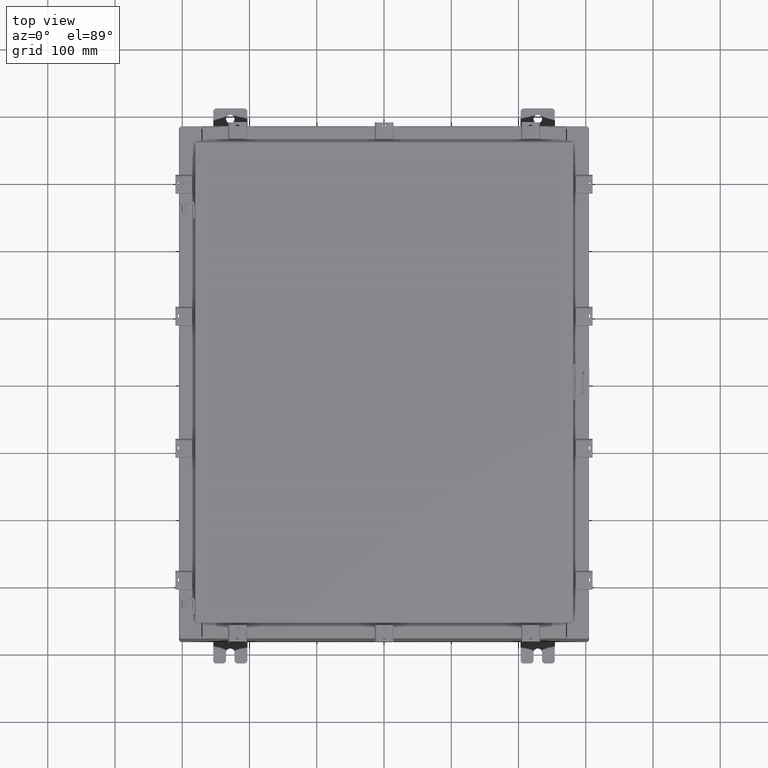
[diagram: clean part render]
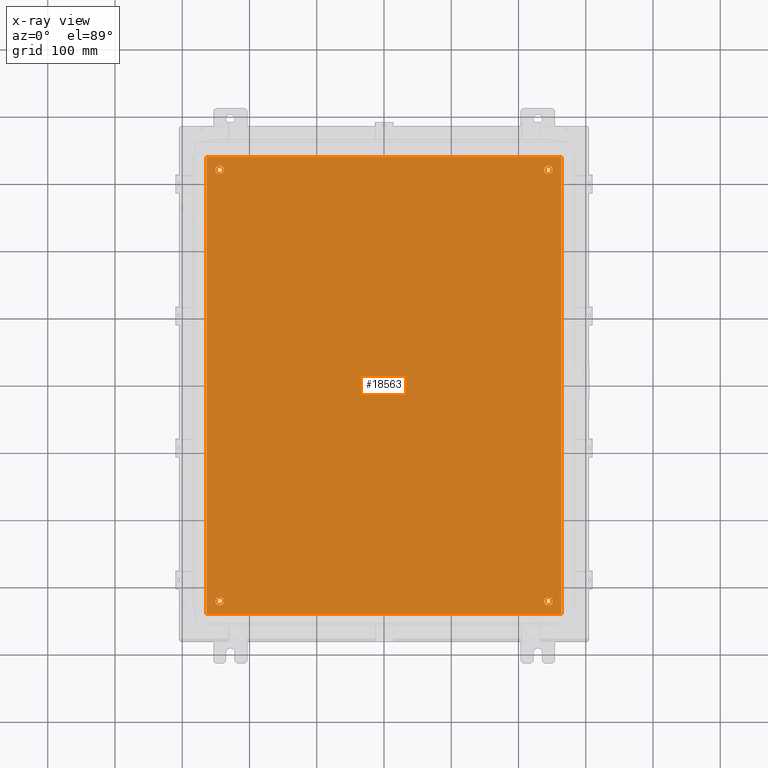
[diagram: x-ray — body ghosted, one internal face saturated and labeled with its STEP entity id]
A machine part, top view, then the same camera in x-ray: the body is ghosted and one INTERNAL B-rep face — a face not visible from any outside direction — is saturated and labeled: STEP entity #18563.
In plain terms, the highlighted planar face has unit normal (0, 0, -1).
Its self-contained STEP definition (entity closure, byte-faithful):
#208 = EDGE_LOOP ( 'NONE', ( #13639, #18663 ) ) ;
#541 = ORIENTED_EDGE ( 'NONE', *, *, #21354, .F. ) ;
#757 = AXIS2_PLACEMENT_3D ( 'NONE', #17508, #6785, #19330 ) ;
#812 = VECTOR ( 'NONE', #3775, 39.37007874015748100 ) ;
#1270 = CARTESIAN_POINT ( 'NONE',  ( -9.875000000000007100, 12.62500000000000000, -0.1039999999999999800 ) ) ;
#1626 = CARTESIAN_POINT ( 'NONE',  ( 9.625000000000007100, 12.62500000000000000, -0.1039999999999999800 ) ) ;
#2111 = DIRECTION ( 'NONE',  ( -0.0000000000000000000, -0.0000000000000000000, 1.000000000000000000 ) ) ;
#2115 = CARTESIAN_POINT ( 'NONE',  ( 9.625000000000007100, -12.62500000000000000, -0.1039999999999999800 ) ) ;
#2194 = EDGE_CURVE ( 'NONE', #21762, #18396, #5521, .T. ) ;
#2472 = VECTOR ( 'NONE', #6717, 39.37007874015748100 ) ;
#2644 = EDGE_CURVE ( 'NONE', #19890, #17779, #14235, .T. ) ;
#2728 = CARTESIAN_POINT ( 'NONE',  ( 0.0000000000000000000, 0.0000000000000000000, -0.1039999999999999800 ) ) ;
#2789 = ORIENTED_EDGE ( 'NONE', *, *, #2644, .T. ) ;
#3090 = VERTEX_POINT ( 'NONE', #12431 ) ;
#3273 = EDGE_LOOP ( 'NONE', ( #6157, #2789 ) ) ;
#3367 = EDGE_LOOP ( 'NONE', ( #541, #11520, #11009, #10593 ) ) ;
#3403 = DIRECTION ( 'NONE',  ( -1.000000000000000000, 0.0000000000000000000, 0.0000000000000000000 ) ) ;
#3775 = DIRECTION ( 'NONE',  ( -1.000000000000000000, -0.0000000000000000000, -0.0000000000000000000 ) ) ;
#3855 = DIRECTION ( 'NONE',  ( 1.000000000000000000, -0.0000000000000000000, -0.0000000000000000000 ) ) ;
#3892 = EDGE_LOOP ( 'NONE', ( #7236, #18105 ) ) ;
#3910 = DIRECTION ( 'NONE',  ( -1.000000000000000000, 0.0000000000000000000, 0.0000000000000000000 ) ) ;
#5365 = FACE_BOUND ( 'NONE', #208, .T. ) ;
#5521 = LINE ( 'NONE', #12717, #812 ) ;
#6128 = CIRCLE ( 'NONE', #17313, 0.2500000000000008900 ) ;
#6157 = ORIENTED_EDGE ( 'NONE', *, *, #11639, .T. ) ;
#6477 = FACE_BOUND ( 'NONE', #9027, .T. ) ;
#6717 = DIRECTION ( 'NONE',  ( 0.0000000000000000000, 1.000000000000000000, 0.0000000000000000000 ) ) ;
#6735 = CARTESIAN_POINT ( 'NONE',  ( 9.375000000000007100, 12.62500000000000000, -0.1039999999999999800 ) ) ;
#6785 = DIRECTION ( 'NONE',  ( -0.0000000000000000000, -0.0000000000000000000, 1.000000000000000000 ) ) ;
#6986 = DIRECTION ( 'NONE',  ( -0.0000000000000000000, -0.0000000000000000000, 1.000000000000000000 ) ) ;
#7194 = LINE ( 'NONE', #10227, #2472 ) ;
#7236 = ORIENTED_EDGE ( 'NONE', *, *, #13588, .T. ) ;
#7356 = CARTESIAN_POINT ( 'NONE',  ( -10.50000000000000200, -13.38299999999999900, -0.1040000000000009100 ) ) ;
#7539 = DIRECTION ( 'NONE',  ( -0.0000000000000000000, -0.0000000000000000000, 1.000000000000000000 ) ) ;
#7734 = DIRECTION ( 'NONE',  ( -0.0000000000000000000, -0.0000000000000000000, 1.000000000000000000 ) ) ;
#8090 = PLANE ( 'NONE',  #21301 ) ;
#8215 = CARTESIAN_POINT ( 'NONE',  ( -9.625000000000007100, -12.62500000000000000, -0.1039999999999999800 ) ) ;
#8240 = ORIENTED_EDGE ( 'NONE', *, *, #21990, .T. ) ;
#8346 = VERTEX_POINT ( 'NONE', #14506 ) ;
#8523 = VERTEX_POINT ( 'NONE', #9557 ) ;
#8839 = CIRCLE ( 'NONE', #19911, 0.2500000000000008900 ) ;
#8924 = VERTEX_POINT ( 'NONE', #10640 ) ;
#9027 = EDGE_LOOP ( 'NONE', ( #8240, #14390 ) ) ;
#9529 = EDGE_CURVE ( 'NONE', #11495, #8924, #8839, .T. ) ;
#9557 = CARTESIAN_POINT ( 'NONE',  ( 10.38300000000000100, -13.38299999999999700, -0.1040000000000009100 ) ) ;
#9670 = AXIS2_PLACEMENT_3D ( 'NONE', #1626, #14115, #3403 ) ;
#9707 = CARTESIAN_POINT ( 'NONE',  ( 9.875000000000007100, -12.62500000000000000, -0.1039999999999999800 ) ) ;
#10047 = DIRECTION ( 'NONE',  ( -1.000000000000000000, 0.0000000000000000000, 0.0000000000000000000 ) ) ;
#10227 = CARTESIAN_POINT ( 'NONE',  ( 10.38300000000000100, -13.38299999999999700, -0.1040000000000009100 ) ) ;
#10307 = AXIS2_PLACEMENT_3D ( 'NONE', #18257, #7539, #20088 ) ;
#10593 = ORIENTED_EDGE ( 'NONE', *, *, #14613, .F. ) ;
#10640 = CARTESIAN_POINT ( 'NONE',  ( -9.875000000000007100, -12.62500000000000000, -0.1039999999999999800 ) ) ;
#11009 = ORIENTED_EDGE ( 'NONE', *, *, #2194, .F. ) ;
#11166 = DIRECTION ( 'NONE',  ( 0.0000000000000000000, -1.000000000000000000, 0.0000000000000000000 ) ) ;
#11495 = VERTEX_POINT ( 'NONE', #18867 ) ;
#11520 = ORIENTED_EDGE ( 'NONE', *, *, #13284, .F. ) ;
#11639 = EDGE_CURVE ( 'NONE', #17779, #19890, #22727, .T. ) ;
#11720 = DIRECTION ( 'NONE',  ( -1.000000000000000000, 0.0000000000000000000, -0.0000000000000000000 ) ) ;
#12102 = AXIS2_PLACEMENT_3D ( 'NONE', #17695, #6986, #19523 ) ;
#12431 = CARTESIAN_POINT ( 'NONE',  ( 9.875000000000007100, 12.62500000000000000, -0.1039999999999999800 ) ) ;
#12717 = CARTESIAN_POINT ( 'NONE',  ( 10.50000000000000400, 13.38299999999999900, -0.1040000000000009100 ) ) ;
#12831 = CARTESIAN_POINT ( 'NONE',  ( 9.625000000000007100, -12.62500000000000000, -0.1039999999999999800 ) ) ;
#12873 = CIRCLE ( 'NONE', #9670, 0.2499999999999998100 ) ;
#12969 = CARTESIAN_POINT ( 'NONE',  ( -10.38300000000000100, 13.38299999999999700, -0.1040000000000020100 ) ) ;
#13284 = EDGE_CURVE ( 'NONE', #18396, #8346, #13716, .T. ) ;
#13413 = EDGE_CURVE ( 'NONE', #8924, #11495, #6128, .T. ) ;
#13588 = EDGE_CURVE ( 'NONE', #3090, #21131, #12873, .T. ) ;
#13592 = EDGE_CURVE ( 'NONE', #21131, #3090, #17034, .T. ) ;
#13639 = ORIENTED_EDGE ( 'NONE', *, *, #9529, .T. ) ;
#13716 = LINE ( 'NONE', #12969, #17898 ) ;
#13777 = CARTESIAN_POINT ( 'NONE',  ( 10.38300000000000100, 13.38299999999999700, -0.1040000000000009100 ) ) ;
#14115 = DIRECTION ( 'NONE',  ( -0.0000000000000000000, -0.0000000000000000000, 1.000000000000000000 ) ) ;
#14235 = CIRCLE ( 'NONE', #10307, 0.2500000000000008900 ) ;
#14268 = CARTESIAN_POINT ( 'NONE',  ( 9.375000000000007100, -12.62500000000000000, -0.1039999999999999800 ) ) ;
#14342 = FACE_OUTER_BOUND ( 'NONE', #3367, .T. ) ;
#14390 = ORIENTED_EDGE ( 'NONE', *, *, #18307, .T. ) ;
#14506 = CARTESIAN_POINT ( 'NONE',  ( -10.38300000000000100, -13.38299999999999900, -0.1040000000000009100 ) ) ;
#14612 = DIRECTION ( 'NONE',  ( -1.000000000000000000, 0.0000000000000000000, 0.0000000000000000000 ) ) ;
#14613 = EDGE_CURVE ( 'NONE', #8523, #21762, #7194, .T. ) ;
#14619 = DIRECTION ( 'NONE',  ( -0.0000000000000000000, -0.0000000000000000000, 1.000000000000000000 ) ) ;
#14624 = CIRCLE ( 'NONE', #22946, 0.2499999999999998100 ) ;
#14893 = FACE_BOUND ( 'NONE', #3892, .T. ) ;
#15024 = CARTESIAN_POINT ( 'NONE',  ( -9.375000000000007100, 12.62500000000000000, -0.1039999999999999800 ) ) ;
#15536 = CIRCLE ( 'NONE', #15619, 0.2499999999999998100 ) ;
#15619 = AXIS2_PLACEMENT_3D ( 'NONE', #2115, #14619, #3910 ) ;
#17034 = CIRCLE ( 'NONE', #12102, 0.2499999999999998100 ) ;
#17044 = VECTOR ( 'NONE', #3855, 39.37007874015748100 ) ;
#17313 = AXIS2_PLACEMENT_3D ( 'NONE', #8215, #20766, #10047 ) ;
#17508 = CARTESIAN_POINT ( 'NONE',  ( -9.625000000000007100, 12.62500000000000000, -0.1039999999999999800 ) ) ;
#17605 = LINE ( 'NONE', #7356, #17044 ) ;
#17695 = CARTESIAN_POINT ( 'NONE',  ( 9.625000000000007100, 12.62500000000000000, -0.1039999999999999800 ) ) ;
#17779 = VERTEX_POINT ( 'NONE', #15024 ) ;
#17898 = VECTOR ( 'NONE', #11166, 39.37007874015748100 ) ;
#18105 = ORIENTED_EDGE ( 'NONE', *, *, #13592, .T. ) ;
#18257 = CARTESIAN_POINT ( 'NONE',  ( -9.625000000000007100, 12.62500000000000000, -0.1039999999999999800 ) ) ;
#18307 = EDGE_CURVE ( 'NONE', #19375, #21560, #14624, .T. ) ;
#18396 = VERTEX_POINT ( 'NONE', #18437 ) ;
#18437 = CARTESIAN_POINT ( 'NONE',  ( -10.38300000000000100, 13.38299999999999700, -0.1040000000000020100 ) ) ;
#18471 = CARTESIAN_POINT ( 'NONE',  ( -9.625000000000007100, -12.62500000000000000, -0.1039999999999999800 ) ) ;
#18563 = ADVANCED_FACE ( 'NONE', ( #5365, #6477, #14893, #19093, #14342 ), #8090, .T. ) ;
#18663 = ORIENTED_EDGE ( 'NONE', *, *, #13413, .T. ) ;
#18867 = CARTESIAN_POINT ( 'NONE',  ( -9.375000000000007100, -12.62500000000000000, -0.1039999999999999800 ) ) ;
#19093 = FACE_BOUND ( 'NONE', #3273, .T. ) ;
#19330 = DIRECTION ( 'NONE',  ( -1.000000000000000000, 0.0000000000000000000, 0.0000000000000000000 ) ) ;
#19375 = VERTEX_POINT ( 'NONE', #14268 ) ;
#19523 = DIRECTION ( 'NONE',  ( -1.000000000000000000, 0.0000000000000000000, 0.0000000000000000000 ) ) ;
#19890 = VERTEX_POINT ( 'NONE', #1270 ) ;
#19911 = AXIS2_PLACEMENT_3D ( 'NONE', #18471, #7734, #20281 ) ;
#20088 = DIRECTION ( 'NONE',  ( -1.000000000000000000, 0.0000000000000000000, 0.0000000000000000000 ) ) ;
#20281 = DIRECTION ( 'NONE',  ( -1.000000000000000000, 0.0000000000000000000, 0.0000000000000000000 ) ) ;
#20766 = DIRECTION ( 'NONE',  ( -0.0000000000000000000, -0.0000000000000000000, 1.000000000000000000 ) ) ;
#21131 = VERTEX_POINT ( 'NONE', #6735 ) ;
#21301 = AXIS2_PLACEMENT_3D ( 'NONE', #2728, #22440, #11720 ) ;
#21354 = EDGE_CURVE ( 'NONE', #8346, #8523, #17605, .T. ) ;
#21560 = VERTEX_POINT ( 'NONE', #9707 ) ;
#21762 = VERTEX_POINT ( 'NONE', #13777 ) ;
#21990 = EDGE_CURVE ( 'NONE', #21560, #19375, #15536, .T. ) ;
#22440 = DIRECTION ( 'NONE',  ( 0.0000000000000000000, 0.0000000000000000000, -1.000000000000000000 ) ) ;
#22727 = CIRCLE ( 'NONE', #757, 0.2500000000000008900 ) ;
#22946 = AXIS2_PLACEMENT_3D ( 'NONE', #12831, #2111, #14612 ) ;